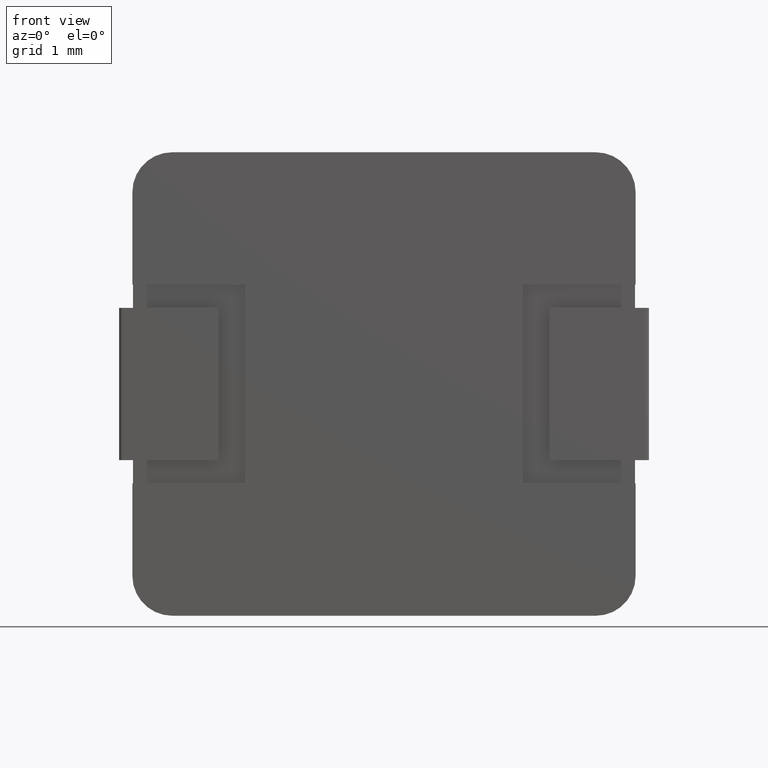
[diagram: clean part render]
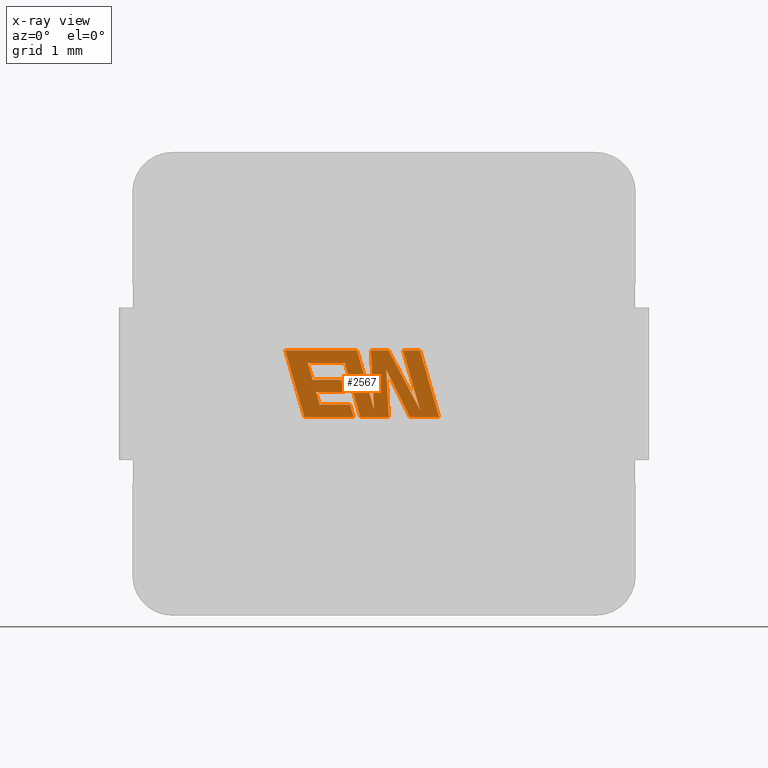
[diagram: x-ray — body ghosted, one internal face saturated and labeled with its STEP entity id]
A machine part, front view, then the same camera in x-ray: the body is ghosted and one INTERNAL B-rep face — a face not visible from any outside direction — is saturated and labeled: STEP entity #2567.
In plain terms, the highlighted planar face has unit normal (0, -1, 0).
Its self-contained STEP definition (entity closure, byte-faithful):
#17 = CARTESIAN_POINT ( 'NONE',  ( 2.649147225822318800, 2.950000000000000200, -3.186386996066438800 ) ) ;
#57 = AXIS2_PLACEMENT_3D ( 'NONE', #1362, #3576, #1986 ) ;
#60 = CARTESIAN_POINT ( 'NONE',  ( 3.206380863936342700, 2.950000000000000200, -3.623291688923047500 ) ) ;
#63 = CARTESIAN_POINT ( 'NONE',  ( 4.342629158914386200, 2.950000000000000200, -2.994599999999967700 ) ) ;
#68 = VERTEX_POINT ( 'NONE', #3420 ) ;
#72 = DIRECTION ( 'NONE',  ( 0.05375259206908269300, 0.0000000000000000000, -0.9985542843760947300 ) ) ;
#75 = LINE ( 'NONE', #2709, #4064 ) ;
#141 = VECTOR ( 'NONE', #1650, 1000.000000000000000 ) ;
#164 = PLANE ( 'NONE',  #57 ) ;
#178 = EDGE_CURVE ( 'NONE', #2923, #787, #2016, .T. ) ;
#198 = LINE ( 'NONE', #3972, #1244 ) ;
#213 = EDGE_CURVE ( 'NONE', #2361, #3776, #987, .T. ) ;
#216 = VECTOR ( 'NONE', #498, 1000.000000000000000 ) ;
#276 = DIRECTION ( 'NONE',  ( 0.2759782365590804900, 0.0000000000000000000, -0.9611638845408936300 ) ) ;
#283 = VERTEX_POINT ( 'NONE', #1369 ) ;
#346 = VECTOR ( 'NONE', #1936, 1000.000000000000100 ) ;
#357 = ORIENTED_EDGE ( 'NONE', *, *, #2985, .F. ) ;
#362 = CARTESIAN_POINT ( 'NONE',  ( 3.650930062431025000, 2.950000000000000200, -3.892063217402859500 ) ) ;
#389 = LINE ( 'NONE', #1971, #3274 ) ;
#400 = DIRECTION ( 'NONE',  ( 0.2763139702539128600, 0.0000000000000000000, -0.9610674221107069500 ) ) ;
#408 = DIRECTION ( 'NONE',  ( -0.4443210308329219600, 0.0000000000000000000, 0.8958676361826950500 ) ) ;
#435 = VERTEX_POINT ( 'NONE', #493 ) ;
#444 = VERTEX_POINT ( 'NONE', #2058 ) ;
#447 = EDGE_CURVE ( 'NONE', #1363, #3987, #3441, .T. ) ;
#470 = VERTEX_POINT ( 'NONE', #2134 ) ;
#476 = DIRECTION ( 'NONE',  ( -1.000000000000000000, 0.0000000000000000000, 0.0000000000000000000 ) ) ;
#484 = ORIENTED_EDGE ( 'NONE', *, *, #2442, .F. ) ;
#493 = CARTESIAN_POINT ( 'NONE',  ( 3.833136436288118600, 2.950000000000000200, -3.282493441677940500 ) ) ;
#498 = DIRECTION ( 'NONE',  ( 1.000000000000000000, 0.0000000000000000000, 0.0000000000000000000 ) ) ;
#532 = ORIENTED_EDGE ( 'NONE', *, *, #2680, .F. ) ;
#547 = ORIENTED_EDGE ( 'NONE', *, *, #1898, .F. ) ;
#556 = EDGE_CURVE ( 'NONE', #3250, #733, #1199, .T. ) ;
#570 = ORIENTED_EDGE ( 'NONE', *, *, #1661, .F. ) ;
#581 = DIRECTION ( 'NONE',  ( 0.2746459304916903900, 0.0000000000000000000, -0.9615454294334477800 ) ) ;
#617 = VERTEX_POINT ( 'NONE', #2569 ) ;
#625 = VECTOR ( 'NONE', #276, 1000.000000000000100 ) ;
#650 = CARTESIAN_POINT ( 'NONE',  ( 3.213807743287203400, 2.950000000000000200, -2.994599999999967700 ) ) ;
#652 = ORIENTED_EDGE ( 'NONE', *, *, #3992, .F. ) ;
#676 = VERTEX_POINT ( 'NONE', #1381 ) ;
#713 = CARTESIAN_POINT ( 'NONE',  ( 4.345424583884904400, 2.950000000000000200, -3.896385091533007400 ) ) ;
#733 = VERTEX_POINT ( 'NONE', #3646 ) ;
#738 = DIRECTION ( 'NONE',  ( -0.2762517575166169600, 0.0000000000000000000, 0.9610853065513904600 ) ) ;
#762 = EDGE_CURVE ( 'NONE', #617, #3250, #198, .T. ) ;
#787 = VERTEX_POINT ( 'NONE', #3662 ) ;
#834 = EDGE_CURVE ( 'NONE', #733, #283, #3670, .T. ) ;
#836 = ORIENTED_EDGE ( 'NONE', *, *, #1879, .F. ) ;
#842 = LINE ( 'NONE', #1055, #2743 ) ;
#860 = LINE ( 'NONE', #3232, #2300 ) ;
#889 = CARTESIAN_POINT ( 'NONE',  ( 3.869368615644170900, 2.950000000000000200, -2.994599999999967700 ) ) ;
#917 = CARTESIAN_POINT ( 'NONE',  ( 3.287552403489906200, 2.950000000000000200, -3.810793592762646000 ) ) ;
#987 = LINE ( 'NONE', #713, #4024 ) ;
#998 = VECTOR ( 'NONE', #581, 1000.000000000000200 ) ;
#999 = VERTEX_POINT ( 'NONE', #2128 ) ;
#1026 = CARTESIAN_POINT ( 'NONE',  ( 2.773703025283382800, 2.950000000000000200, -3.623291688923047500 ) ) ;
#1055 = CARTESIAN_POINT ( 'NONE',  ( 4.086461564074593200, 2.950000000000000200, -2.994599999999967700 ) ) ;
#1125 = ORIENTED_EDGE ( 'NONE', *, *, #178, .F. ) ;
#1156 = LINE ( 'NONE', #3752, #998 ) ;
#1199 = LINE ( 'NONE', #17, #346 ) ;
#1228 = VECTOR ( 'NONE', #1530, 1000.000000000000000 ) ;
#1244 = VECTOR ( 'NONE', #2982, 1000.000000000000000 ) ;
#1280 = CARTESIAN_POINT ( 'NONE',  ( 4.086461564074593200, 2.950000000000000200, -2.994599999999967700 ) ) ;
#1362 = CARTESIAN_POINT ( 'NONE',  ( -0.02245865087966304000, 2.949999999999999300, 0.001344869306663457100 ) ) ;
#1363 = VERTEX_POINT ( 'NONE', #3630 ) ;
#1364 = VECTOR ( 'NONE', #1631, 1000.000000000000000 ) ;
#1369 = CARTESIAN_POINT ( 'NONE',  ( 3.153151313453042900, 2.950000000000000200, -3.436933089374956100 ) ) ;
#1381 = CARTESIAN_POINT ( 'NONE',  ( 2.828262854754878000, 2.950000000000000200, -3.810793592762646000 ) ) ;
#1384 = ORIENTED_EDGE ( 'NONE', *, *, #2663, .F. ) ;
#1422 = VECTOR ( 'NONE', #2499, 1000.000000000000100 ) ;
#1449 = CARTESIAN_POINT ( 'NONE',  ( 2.828262854754878000, 2.950000000000000200, -3.810793592762646000 ) ) ;
#1452 = VECTOR ( 'NONE', #476, 1000.000000000000000 ) ;
#1520 = CARTESIAN_POINT ( 'NONE',  ( 3.393242148747298800, 2.950000000000000200, -2.994599999999967700 ) ) ;
#1530 = DIRECTION ( 'NONE',  ( -1.000000000000000000, 0.0000000000000000000, 0.0000000000000000000 ) ) ;
#1533 = VECTOR ( 'NONE', #3448, 999.9999999999998900 ) ;
#1581 = EDGE_CURVE ( 'NONE', #787, #68, #2357, .T. ) ;
#1631 = DIRECTION ( 'NONE',  ( 1.000000000000000000, 0.0000000000000000000, 2.416932627174719800E-015 ) ) ;
#1650 = DIRECTION ( 'NONE',  ( -1.000000000000000000, 0.0000000000000000000, 0.0000000000000000000 ) ) ;
#1661 = EDGE_CURVE ( 'NONE', #2705, #470, #3953, .T. ) ;
#1691 = LINE ( 'NONE', #1708, #1452 ) ;
#1708 = CARTESIAN_POINT ( 'NONE',  ( 3.871904141607728400, 2.950000000000000200, -4.002675608755097000 ) ) ;
#1713 = CARTESIAN_POINT ( 'NONE',  ( 4.190323223642890200, 2.950000000000000200, -4.002675608755097000 ) ) ;
#1769 = EDGE_CURVE ( 'NONE', #2415, #2804, #860, .T. ) ;
#1823 = DIRECTION ( 'NONE',  ( 0.4668459304955210300, 0.0000000000000000000, -0.8843386665637611400 ) ) ;
#1849 = EDGE_CURVE ( 'NONE', #2804, #999, #3707, .T. ) ;
#1879 = EDGE_CURVE ( 'NONE', #3987, #2189, #3459, .T. ) ;
#1898 = EDGE_CURVE ( 'NONE', #3222, #3834, #2509, .T. ) ;
#1905 = ORIENTED_EDGE ( 'NONE', *, *, #1769, .F. ) ;
#1936 = DIRECTION ( 'NONE',  ( 0.2740217765954086100, 0.0000000000000000000, -0.9617234872620590300 ) ) ;
#1941 = CARTESIAN_POINT ( 'NONE',  ( 3.287552403489906200, 2.950000000000000200, -3.810793592762646000 ) ) ;
#1943 = CARTESIAN_POINT ( 'NONE',  ( 3.600624673595562700, 2.950000000000000200, -2.994599999999967700 ) ) ;
#1971 = CARTESIAN_POINT ( 'NONE',  ( 3.833136436288118600, 2.950000000000000200, -3.282493441677940500 ) ) ;
#1986 = DIRECTION ( 'NONE',  ( 0.0000000000000000000, 0.0000000000000000000, -1.000000000000000000 ) ) ;
#2016 = LINE ( 'NONE', #63, #2632 ) ;
#2057 = ORIENTED_EDGE ( 'NONE', *, *, #2927, .F. ) ;
#2058 = CARTESIAN_POINT ( 'NONE',  ( 3.871904141607728400, 2.950000000000000200, -4.002675608755097000 ) ) ;
#2128 = CARTESIAN_POINT ( 'NONE',  ( 3.869368615644170900, 2.950000000000000200, -2.994599999999967700 ) ) ;
#2134 = CARTESIAN_POINT ( 'NONE',  ( 3.342050929782331500, 2.950000000000000200, -4.002675608755097000 ) ) ;
#2147 = DIRECTION ( 'NONE',  ( 1.000000000000000000, 0.0000000000000000000, 0.0000000000000000000 ) ) ;
#2189 = VERTEX_POINT ( 'NONE', #1520 ) ;
#2233 = ORIENTED_EDGE ( 'NONE', *, *, #556, .F. ) ;
#2247 = VERTEX_POINT ( 'NONE', #2772 ) ;
#2285 = CARTESIAN_POINT ( 'NONE',  ( 3.342050929782331500, 2.950000000000000200, -4.002675608755097000 ) ) ;
#2300 = VECTOR ( 'NONE', #3200, 1000.000000000000100 ) ;
#2357 = LINE ( 'NONE', #4025, #1228 ) ;
#2361 = VERTEX_POINT ( 'NONE', #3512 ) ;
#2367 = ORIENTED_EDGE ( 'NONE', *, *, #3333, .F. ) ;
#2386 = VECTOR ( 'NONE', #1823, 1000.000000000000100 ) ;
#2415 = VERTEX_POINT ( 'NONE', #362 ) ;
#2442 = EDGE_CURVE ( 'NONE', #676, #2705, #3937, .T. ) ;
#2482 = VECTOR ( 'NONE', #738, 1000.000000000000200 ) ;
#2499 = DIRECTION ( 'NONE',  ( 0.2732148821745940500, 0.0000000000000000000, -0.9619530280415580200 ) ) ;
#2509 = LINE ( 'NONE', #60, #3993 ) ;
#2567 = ADVANCED_FACE ( 'NONE', ( #3886 ), #164, .T. ) ;
#2568 = LINE ( 'NONE', #1713, #2625 ) ;
#2569 = CARTESIAN_POINT ( 'NONE',  ( 3.207968616274165200, 2.950000000000000200, -3.186386996066438800 ) ) ;
#2599 = DIRECTION ( 'NONE',  ( 1.000000000000000000, 0.0000000000000000000, 0.0000000000000000000 ) ) ;
#2625 = VECTOR ( 'NONE', #408, 1000.000000000000000 ) ;
#2632 = VECTOR ( 'NONE', #400, 1000.000000000000100 ) ;
#2663 = EDGE_CURVE ( 'NONE', #999, #2361, #3245, .T. ) ;
#2680 = EDGE_CURVE ( 'NONE', #283, #3222, #1156, .T. ) ;
#2705 = VERTEX_POINT ( 'NONE', #917 ) ;
#2709 = CARTESIAN_POINT ( 'NONE',  ( 2.773703025283382800, 2.950000000000000200, -3.623291688923047500 ) ) ;
#2725 = LINE ( 'NONE', #3103, #625 ) ;
#2743 = VECTOR ( 'NONE', #3321, 1000.000000000000000 ) ;
#2772 = CARTESIAN_POINT ( 'NONE',  ( 3.442600404273501400, 2.950000000000000200, -4.002675608755097000 ) ) ;
#2804 = VERTEX_POINT ( 'NONE', #1943 ) ;
#2816 = ORIENTED_EDGE ( 'NONE', *, *, #3309, .F. ) ;
#2923 = VERTEX_POINT ( 'NONE', #3338 ) ;
#2927 = EDGE_CURVE ( 'NONE', #3776, #2923, #842, .T. ) ;
#2982 = DIRECTION ( 'NONE',  ( -1.000000000000000000, 0.0000000000000000000, 0.0000000000000000000 ) ) ;
#2983 = DIRECTION ( 'NONE',  ( -1.000000000000000000, 0.0000000000000000000, 0.0000000000000000000 ) ) ;
#2985 = EDGE_CURVE ( 'NONE', #444, #2247, #1691, .T. ) ;
#3033 = ORIENTED_EDGE ( 'NONE', *, *, #834, .F. ) ;
#3103 = CARTESIAN_POINT ( 'NONE',  ( 3.393242148747298800, 2.950000000000000200, -2.994599999999967700 ) ) ;
#3121 = CARTESIAN_POINT ( 'NONE',  ( 2.649147225822318800, 2.950000000000000200, -3.186386996066438800 ) ) ;
#3200 = DIRECTION ( 'NONE',  ( -0.05596501978068242600, 0.0000000000000000000, 0.9984327301130245800 ) ) ;
#3213 = EDGE_LOOP ( 'NONE', ( #3939, #1125, #2057, #3783, #1384, #3643, #1905, #3757, #836, #4033, #2367, #570, #484, #652, #547, #532, #3033, #2233, #3260, #2816, #357, #4050, #3653 ) ) ;
#3222 = VERTEX_POINT ( 'NONE', #4049 ) ;
#3232 = CARTESIAN_POINT ( 'NONE',  ( 3.650930062431025000, 2.950000000000000200, -3.892063217402859500 ) ) ;
#3245 = LINE ( 'NONE', #889, #2386 ) ;
#3250 = VERTEX_POINT ( 'NONE', #3121 ) ;
#3259 = CARTESIAN_POINT ( 'NONE',  ( 3.442600404273501400, 2.950000000000000200, -4.002675608755097000 ) ) ;
#3260 = ORIENTED_EDGE ( 'NONE', *, *, #762, .F. ) ;
#3274 = VECTOR ( 'NONE', #72, 1000.000000000000200 ) ;
#3275 = VECTOR ( 'NONE', #2147, 1000.000000000000000 ) ;
#3309 = EDGE_CURVE ( 'NONE', #2247, #617, #3334, .T. ) ;
#3321 = DIRECTION ( 'NONE',  ( 1.000000000000000000, 0.0000000000000000000, 0.0000000000000000000 ) ) ;
#3333 = EDGE_CURVE ( 'NONE', #470, #1363, #3623, .T. ) ;
#3334 = LINE ( 'NONE', #3259, #2482 ) ;
#3338 = CARTESIAN_POINT ( 'NONE',  ( 4.342629158914386200, 2.950000000000000200, -2.994599999999967700 ) ) ;
#3355 = CARTESIAN_POINT ( 'NONE',  ( 2.307234873459483200, 2.950000000000000200, -2.994599999999967300 ) ) ;
#3420 = CARTESIAN_POINT ( 'NONE',  ( 4.190323223642890200, 2.950000000000000200, -4.002675608755097000 ) ) ;
#3441 = LINE ( 'NONE', #3787, #1533 ) ;
#3448 = DIRECTION ( 'NONE',  ( -0.2765379750249958900, 0.0000000000000000000, 0.9610029908221279200 ) ) ;
#3459 = LINE ( 'NONE', #650, #1364 ) ;
#3503 = CARTESIAN_POINT ( 'NONE',  ( 3.600624673595562700, 2.950000000000000200, -2.994599999999967700 ) ) ;
#3512 = CARTESIAN_POINT ( 'NONE',  ( 4.345424583884904400, 2.950000000000000200, -3.896385091533007400 ) ) ;
#3571 = DIRECTION ( 'NONE',  ( -0.2760118818968561000, 0.0000000000000000000, 0.9611542233438689100 ) ) ;
#3576 = DIRECTION ( 'NONE',  ( 0.0000000000000000000, -1.000000000000000000, 0.0000000000000000000 ) ) ;
#3593 = VECTOR ( 'NONE', #2599, 1000.000000000000000 ) ;
#3623 = LINE ( 'NONE', #2285, #141 ) ;
#3630 = CARTESIAN_POINT ( 'NONE',  ( 2.597318452990019300, 2.950000000000000200, -4.002675608755097000 ) ) ;
#3643 = ORIENTED_EDGE ( 'NONE', *, *, #1849, .F. ) ;
#3646 = CARTESIAN_POINT ( 'NONE',  ( 2.720534777979222200, 2.950000000000000200, -3.436933089374956100 ) ) ;
#3653 = ORIENTED_EDGE ( 'NONE', *, *, #3832, .F. ) ;
#3662 = CARTESIAN_POINT ( 'NONE',  ( 4.632458329441793600, 2.950000000000000200, -4.002675608755097000 ) ) ;
#3670 = LINE ( 'NONE', #3717, #3275 ) ;
#3707 = LINE ( 'NONE', #3503, #3593 ) ;
#3717 = CARTESIAN_POINT ( 'NONE',  ( 2.720534777979222200, 2.950000000000000200, -3.436933089374956100 ) ) ;
#3752 = CARTESIAN_POINT ( 'NONE',  ( 3.153151313453042900, 2.950000000000000200, -3.436933089374956100 ) ) ;
#3757 = ORIENTED_EDGE ( 'NONE', *, *, #4127, .F. ) ;
#3776 = VERTEX_POINT ( 'NONE', #1280 ) ;
#3783 = ORIENTED_EDGE ( 'NONE', *, *, #213, .F. ) ;
#3787 = CARTESIAN_POINT ( 'NONE',  ( 2.597318452990019300, 2.950000000000000200, -4.002675608755097000 ) ) ;
#3832 = EDGE_CURVE ( 'NONE', #68, #435, #2568, .T. ) ;
#3834 = VERTEX_POINT ( 'NONE', #1026 ) ;
#3882 = EDGE_CURVE ( 'NONE', #435, #444, #389, .T. ) ;
#3886 = FACE_OUTER_BOUND ( 'NONE', #3213, .T. ) ;
#3937 = LINE ( 'NONE', #1449, #216 ) ;
#3939 = ORIENTED_EDGE ( 'NONE', *, *, #1581, .F. ) ;
#3953 = LINE ( 'NONE', #1941, #1422 ) ;
#3972 = CARTESIAN_POINT ( 'NONE',  ( 3.207968616274165200, 2.950000000000000200, -3.186386996066438800 ) ) ;
#3987 = VERTEX_POINT ( 'NONE', #3355 ) ;
#3992 = EDGE_CURVE ( 'NONE', #3834, #676, #75, .T. ) ;
#3993 = VECTOR ( 'NONE', #2983, 1000.000000000000000 ) ;
#4007 = DIRECTION ( 'NONE',  ( 0.2793947940878301900, 0.0000000000000000000, -0.9601763114327591700 ) ) ;
#4024 = VECTOR ( 'NONE', #3571, 1000.000000000000100 ) ;
#4025 = CARTESIAN_POINT ( 'NONE',  ( 4.632458329441793600, 2.950000000000000200, -4.002675608755097000 ) ) ;
#4033 = ORIENTED_EDGE ( 'NONE', *, *, #447, .F. ) ;
#4049 = CARTESIAN_POINT ( 'NONE',  ( 3.206380863936342700, 2.950000000000000200, -3.623291688923047500 ) ) ;
#4050 = ORIENTED_EDGE ( 'NONE', *, *, #3882, .F. ) ;
#4064 = VECTOR ( 'NONE', #4007, 1000.000000000000100 ) ;
#4127 = EDGE_CURVE ( 'NONE', #2189, #2415, #2725, .T. ) ;